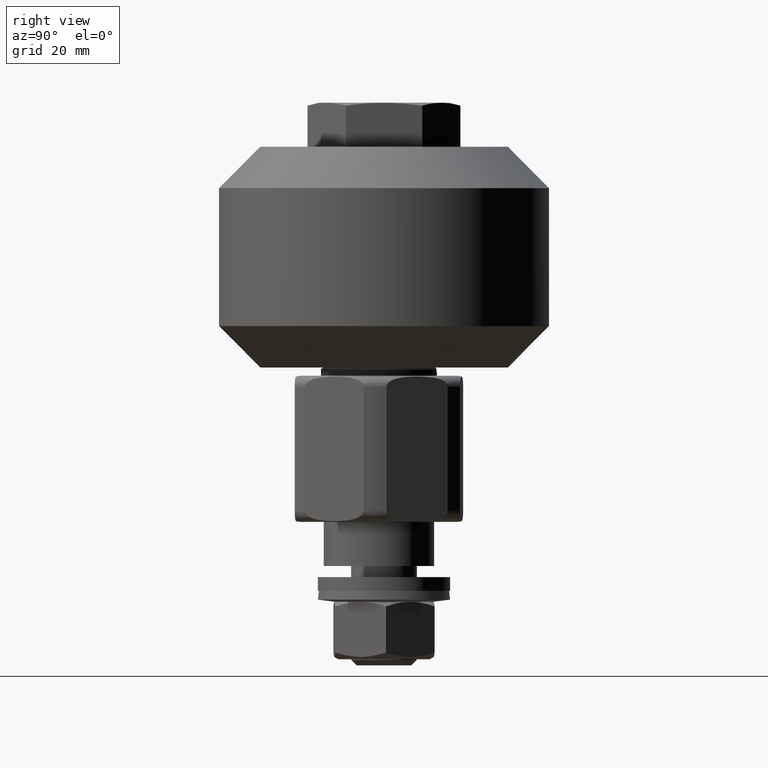
[diagram: clean part render]
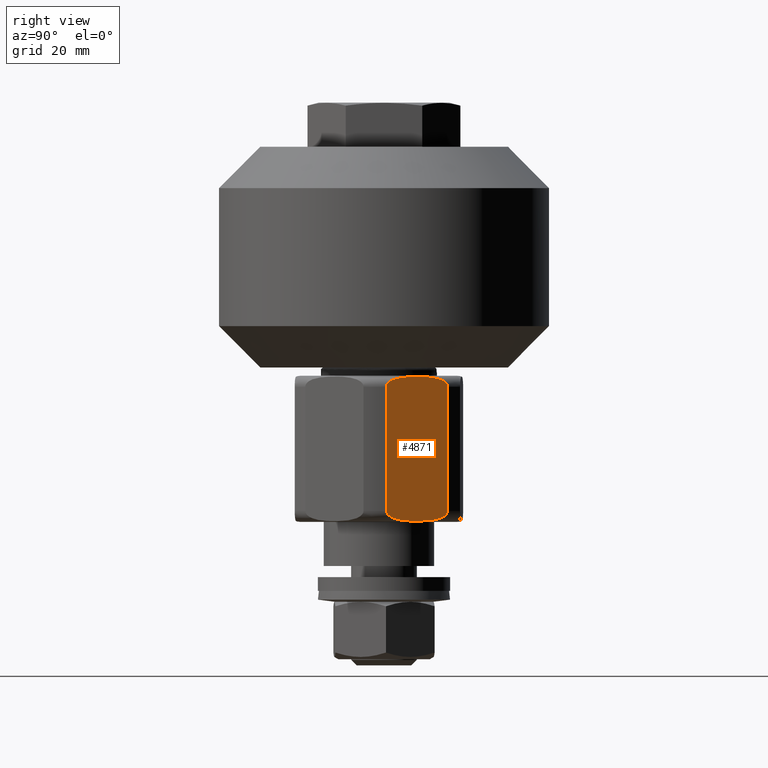
[diagram: same view with one face highlighted and labeled with its STEP entity id]
A machine part, right view. The second image highlights one B-rep face of the part: STEP entity #4871.
In plain terms, the highlighted planar face has unit normal (0.8873, 0.4612, -0).
Its self-contained STEP definition (entity closure, byte-faithful):
#64=B_SPLINE_CURVE_WITH_KNOTS('',3,(#7527,#7528,#7529,#7530,#7531,#7532,
#7533,#7534,#7535,#7536,#7537,#7538,#7539,#7540,#7541,#7542,#7543,#7544,
#7545,#7546,#7547,#7548,#7549),.UNSPECIFIED.,.F.,.F.,(4,2,2,2,2,3,2,2,2,
2,4),(-0.65445505176569,-0.615458381337922,-0.55918216331077,-0.457887403956303,
-0.228943701978152,0.,0.228943701978152,0.457887403956303,0.55918216331077,
0.615458381337921,0.65445505176569),.UNSPECIFIED.);
#68=B_SPLINE_CURVE_WITH_KNOTS('',3,(#7619,#7620,#7621,#7622,#7623,#7624,
#7625,#7626,#7627,#7628,#7629,#7630,#7631,#7632,#7633,#7634,#7635,#7636,
#7637,#7638,#7639,#7640),.UNSPECIFIED.,.F.,.F.,(4,2,2,2,2,2,2,2,2,2,4),
(0.654455051765689,0.693451722193457,0.749727940220609,0.851022699575075,
1.07996640155323,1.30891010353138,1.53785380550953,1.76679750748768,1.86809226684215,
1.9243684848693,1.96336515529707),.UNSPECIFIED.);
#261=PLANE('',#5397);
#483=FACE_OUTER_BOUND('',#763,.T.);
#763=EDGE_LOOP('',(#3457,#3458,#3459,#3460));
#1318=LINE('',#7774,#1608);
#1319=LINE('',#7775,#1609);
#1608=VECTOR('',#6090,10.);
#1609=VECTOR('',#6091,10.);
#2051=VERTEX_POINT('',#7524);
#2052=VERTEX_POINT('',#7526);
#2058=VERTEX_POINT('',#7617);
#2059=VERTEX_POINT('',#7618);
#2596=EDGE_CURVE('',#2052,#2051,#64,.T.);
#2603=EDGE_CURVE('',#2058,#2059,#68,.T.);
#2618=EDGE_CURVE('',#2051,#2058,#1318,.T.);
#2619=EDGE_CURVE('',#2059,#2052,#1319,.T.);
#3457=ORIENTED_EDGE('',*,*,#2596,.T.);
#3458=ORIENTED_EDGE('',*,*,#2618,.T.);
#3459=ORIENTED_EDGE('',*,*,#2603,.T.);
#3460=ORIENTED_EDGE('',*,*,#2619,.T.);
#4871=ADVANCED_FACE('',(#483),#261,.T.);
#5397=AXIS2_PLACEMENT_3D('',#7773,#6088,#6089);
#6088=DIRECTION('center_axis',(0.,1.28197512425571E-16,1.));
#6089=DIRECTION('ref_axis',(0.,1.,-1.28197512425571E-16));
#6090=DIRECTION('',(-1.,0.,0.));
#6091=DIRECTION('',(1.,0.,0.));
#7524=CARTESIAN_POINT('',(11.25,6.25000000000001,15.));
#7526=CARTESIAN_POINT('',(11.25,-6.25000000000001,15.));
#7527=CARTESIAN_POINT('Ctrl Pts',(11.25,-6.25000000000001,15.));
#7528=CARTESIAN_POINT('Ctrl Pts',(11.3799889014259,-6.25000000000001,15.));
#7529=CARTESIAN_POINT('Ctrl Pts',(11.5301733976963,-6.20785190453592,15.));
#7530=CARTESIAN_POINT('Ctrl Pts',(11.8106276528386,-6.05885487831375,15.));
#7531=CARTESIAN_POINT('Ctrl Pts',(11.9729148831963,-5.90285789658059,15.));
#7532=CARTESIAN_POINT('Ctrl Pts',(12.2949896343247,-5.48795871425236,15.));
#7533=CARTESIAN_POINT('Ctrl Pts',(12.4633942317916,-5.11943470700873,15.));
#7534=CARTESIAN_POINT('Ctrl Pts',(12.8226536595242,-4.07891463904056,15.));
#7535=CARTESIAN_POINT('Ctrl Pts',(12.9412026717376,-3.25922012694919,15.));
#7536=CARTESIAN_POINT('Ctrl Pts',(13.083465251009,-1.60146916886195,15.));
#7537=CARTESIAN_POINT('Ctrl Pts',(13.1040496217739,-0.763145673260504,15.));
#7538=CARTESIAN_POINT('Ctrl Pts',(13.1040496217739,1.92296268638356E-15,
15.));
#7539=CARTESIAN_POINT('Ctrl Pts',(13.1040496217739,0.763145673260508,15.));
#7540=CARTESIAN_POINT('Ctrl Pts',(13.083465251009,1.60146916886195,15.));
#7541=CARTESIAN_POINT('Ctrl Pts',(12.9412026717376,3.2592201269492,15.));
#7542=CARTESIAN_POINT('Ctrl Pts',(12.8226536595242,4.07891463904056,15.));
#7543=CARTESIAN_POINT('Ctrl Pts',(12.4633942317916,5.11943470700874,15.));
#7544=CARTESIAN_POINT('Ctrl Pts',(12.2949896343247,5.48795871425236,15.));
#7545=CARTESIAN_POINT('Ctrl Pts',(11.9729148831963,5.9028578965806,15.));
#7546=CARTESIAN_POINT('Ctrl Pts',(11.8106276528386,6.05885487831375,15.));
#7547=CARTESIAN_POINT('Ctrl Pts',(11.5301733976963,6.20785190453593,15.));
#7548=CARTESIAN_POINT('Ctrl Pts',(11.3799889014259,6.25000000000001,15.));
#7549=CARTESIAN_POINT('Ctrl Pts',(11.25,6.25000000000001,15.));
#7617=CARTESIAN_POINT('',(-11.25,6.25000000000001,15.));
#7618=CARTESIAN_POINT('',(-11.25,-6.25000000000001,15.));
#7619=CARTESIAN_POINT('Ctrl Pts',(-11.25,6.25,15.));
#7620=CARTESIAN_POINT('Ctrl Pts',(-11.3799889014259,6.25,15.));
#7621=CARTESIAN_POINT('Ctrl Pts',(-11.5301733976963,6.20785190453593,15.));
#7622=CARTESIAN_POINT('Ctrl Pts',(-11.8106276528386,6.05885487831375,15.));
#7623=CARTESIAN_POINT('Ctrl Pts',(-11.9729148831963,5.9028578965806,15.));
#7624=CARTESIAN_POINT('Ctrl Pts',(-12.2949896343247,5.48795871425236,15.));
#7625=CARTESIAN_POINT('Ctrl Pts',(-12.4633942317916,5.11943470700874,15.));
#7626=CARTESIAN_POINT('Ctrl Pts',(-12.8226536595242,4.07891463904056,15.));
#7627=CARTESIAN_POINT('Ctrl Pts',(-12.9412026717376,3.2592201269492,15.));
#7628=CARTESIAN_POINT('Ctrl Pts',(-13.083465251009,1.60146916886195,15.));
#7629=CARTESIAN_POINT('Ctrl Pts',(-13.1040496217739,0.763145673260508,15.));
#7630=CARTESIAN_POINT('Ctrl Pts',(-13.1040496217739,-0.763145673260504,
15.));
#7631=CARTESIAN_POINT('Ctrl Pts',(-13.083465251009,-1.60146916886195,15.));
#7632=CARTESIAN_POINT('Ctrl Pts',(-12.9412026717376,-3.25922012694919,15.));
#7633=CARTESIAN_POINT('Ctrl Pts',(-12.8226536595242,-4.07891463904056,15.));
#7634=CARTESIAN_POINT('Ctrl Pts',(-12.4633942317916,-5.11943470700873,15.));
#7635=CARTESIAN_POINT('Ctrl Pts',(-12.2949896343247,-5.48795871425236,15.));
#7636=CARTESIAN_POINT('Ctrl Pts',(-11.9729148831963,-5.90285789658059,15.));
#7637=CARTESIAN_POINT('Ctrl Pts',(-11.8106276528386,-6.05885487831375,15.));
#7638=CARTESIAN_POINT('Ctrl Pts',(-11.5301733976963,-6.20785190453592,15.));
#7639=CARTESIAN_POINT('Ctrl Pts',(-11.3799889014259,-6.25000000000001,15.));
#7640=CARTESIAN_POINT('Ctrl Pts',(-11.25,-6.25000000000001,15.));
#7773=CARTESIAN_POINT('Origin',(13.25,1.11022302462516E-15,15.));
#7774=CARTESIAN_POINT('',(-13.25,6.25000000000001,15.));
#7775=CARTESIAN_POINT('',(-13.25,-6.25000000000001,15.));